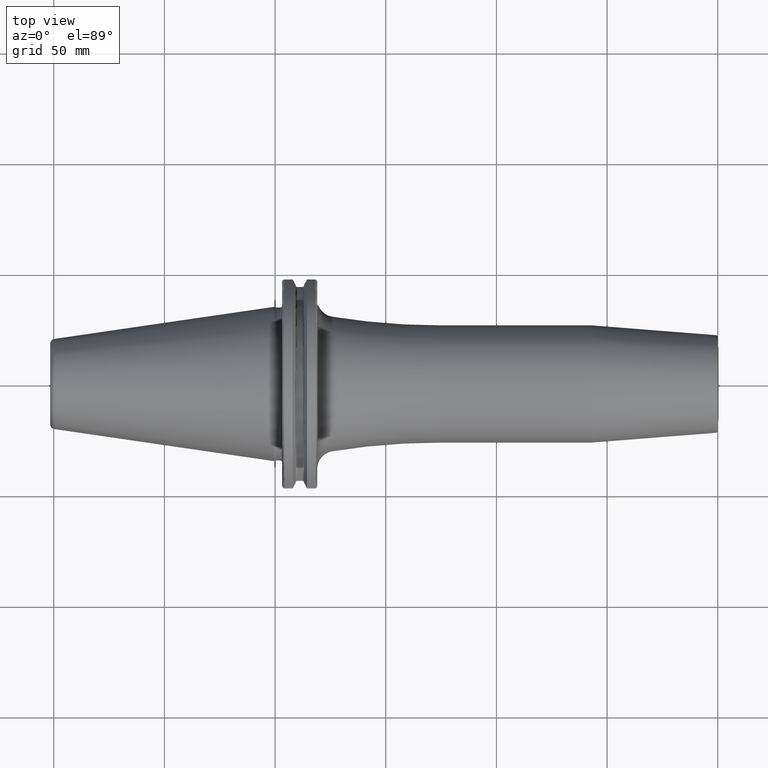
[diagram: clean part render]
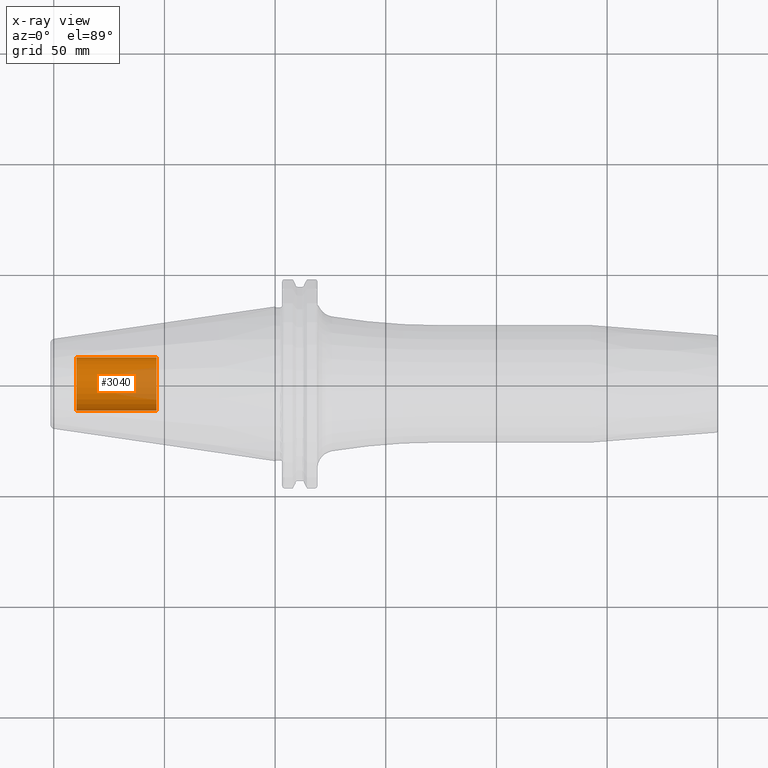
[diagram: x-ray — body ghosted, one internal face saturated and labeled with its STEP entity id]
A machine part, top view, then the same camera in x-ray: the body is ghosted and one INTERNAL B-rep face — a face not visible from any outside direction — is saturated and labeled: STEP entity #3040.
In plain terms, the highlighted cylindrical surface (edge-blend (fillet) strip) has radius 12.0032 mm, axis along (1, 0, 0).
Its self-contained STEP definition (entity closure, byte-faithful):
#2975=CARTESIAN_POINT('',(-8.985E1,0.E0,0.E0));
#2976=DIRECTION('',(-1.E0,0.E0,0.E0));
#2977=DIRECTION('',(0.E0,1.E0,0.E0));
#2978=AXIS2_PLACEMENT_3D('',#2975,#2976,#2977);
#2980=DIRECTION('',(1.E0,0.E0,0.E0));
#2981=VECTOR('',#2980,3.625E1);
#2982=CARTESIAN_POINT('',(-8.985E1,-1.200325E1,0.E0));
#2983=LINE('',#2982,#2981);
#2989=DIRECTION('',(1.E0,0.E0,0.E0));
#2990=VECTOR('',#2989,3.625E1);
#2991=CARTESIAN_POINT('',(-8.985E1,1.200325E1,0.E0));
#2992=LINE('',#2991,#2990);
#2998=CARTESIAN_POINT('',(-5.36E1,0.E0,0.E0));
#2999=DIRECTION('',(1.E0,0.E0,0.E0));
#3000=DIRECTION('',(0.E0,-1.E0,0.E0));
#3001=AXIS2_PLACEMENT_3D('',#2998,#2999,#3000);
#3013=CARTESIAN_POINT('',(-8.985E1,1.200325E1,0.E0));
#3014=CARTESIAN_POINT('',(-8.985E1,-1.200325E1,0.E0));
#3015=VERTEX_POINT('',#3013);
#3016=VERTEX_POINT('',#3014);
#3017=CARTESIAN_POINT('',(-5.36E1,1.200325E1,0.E0));
#3018=CARTESIAN_POINT('',(-5.36E1,-1.200325E1,0.E0));
#3019=VERTEX_POINT('',#3017);
#3020=VERTEX_POINT('',#3018);
#3025=CARTESIAN_POINT('',(-8.985E1,0.E0,0.E0));
#3026=DIRECTION('',(1.E0,0.E0,0.E0));
#3027=DIRECTION('',(0.E0,1.E0,0.E0));
#3028=AXIS2_PLACEMENT_3D('',#3025,#3026,#3027);
#3029=CYLINDRICAL_SURFACE('',#3028,1.200325E1);
#3031=ORIENTED_EDGE('',*,*,#3030,.T.);
#3033=ORIENTED_EDGE('',*,*,#3032,.T.);
#3035=ORIENTED_EDGE('',*,*,#3034,.T.);
#3037=ORIENTED_EDGE('',*,*,#3036,.F.);
#3038=EDGE_LOOP('',(#3031,#3033,#3035,#3037));
#3039=FACE_OUTER_BOUND('',#3038,.F.);
#3040=ADVANCED_FACE('',(#3039),#3029,.T.);
#2979=CIRCLE('',#2978,1.200325E1);
#3002=CIRCLE('',#3001,1.200325E1);
#3030=EDGE_CURVE('',#3015,#3016,#2979,.T.);
#3032=EDGE_CURVE('',#3016,#3020,#2983,.T.);
#3034=EDGE_CURVE('',#3020,#3019,#3002,.T.);
#3036=EDGE_CURVE('',#3015,#3019,#2992,.T.);